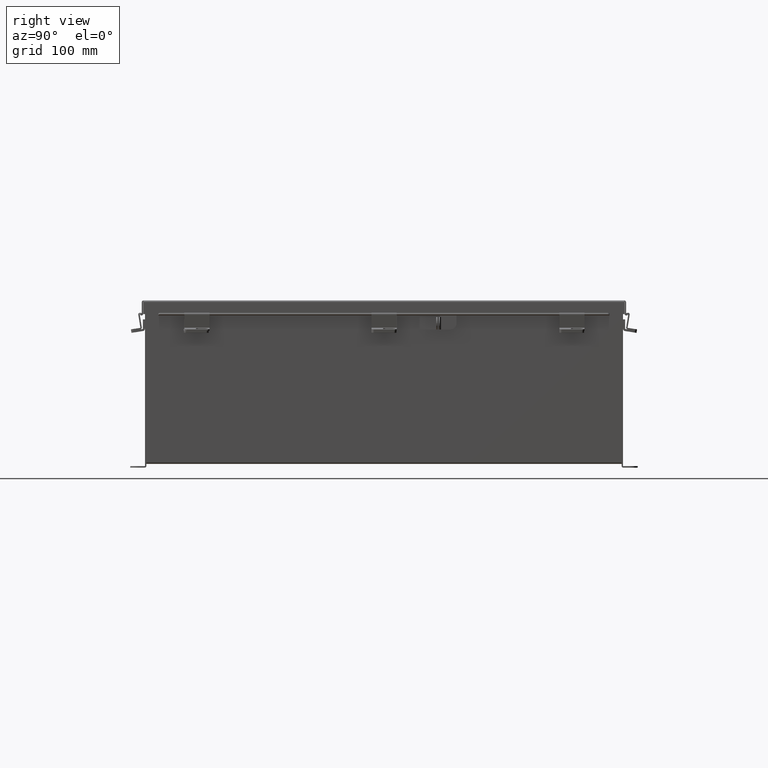
[diagram: clean part render]
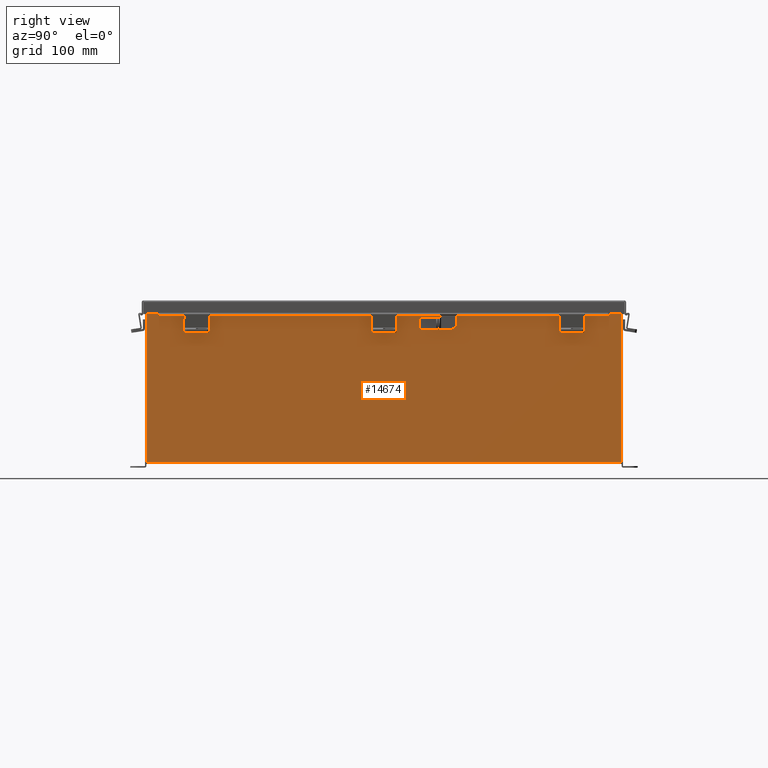
[diagram: same view with one face highlighted and labeled with its STEP entity id]
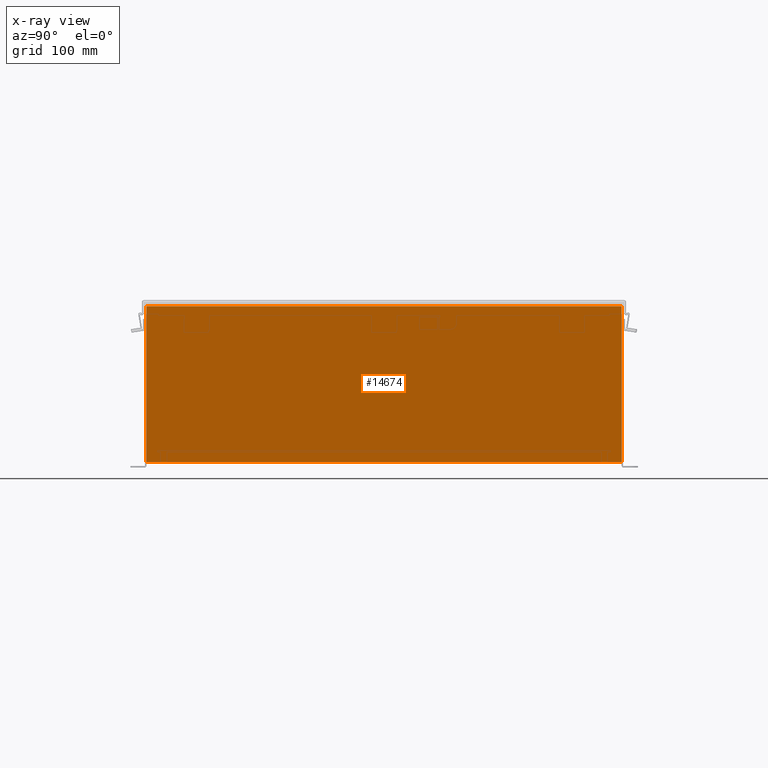
[diagram: x-ray of the same camera — body ghosted, the highlighted face saturated]
A machine part, right view. The second image highlights one B-rep face of the part: STEP entity #14674.
The next image is the same camera in x-ray: the body ghosted, the highlighted face saturated — about 0% of this face is hidden behind the body in this view.
In plain terms, the highlighted planar face has unit normal (-1, 0, 0).
Its self-contained STEP definition (entity closure, byte-faithful):
#30 = ORIENTED_EDGE ( 'NONE', *, *, #12408, .T. ) ;
#211 = ORIENTED_EDGE ( 'NONE', *, *, #10197, .T. ) ;
#981 = DIRECTION ( 'NONE',  ( -0.0000000000000000000, -1.000000000000000000, -0.0000000000000000000 ) ) ;
#3743 = VERTEX_POINT ( 'NONE', #20779 ) ;
#3793 = EDGE_LOOP ( 'NONE', ( #211, #30, #24197, #11752 ) ) ;
#5297 = PLANE ( 'NONE',  #8667 ) ;
#5369 = LINE ( 'NONE', #13955, #15008 ) ;
#6291 = DIRECTION ( 'NONE',  ( -0.0000000000000000000, -1.000000000000000000, -0.0000000000000000000 ) ) ;
#6735 = VECTOR ( 'NONE', #10698, 39.37007874015748100 ) ;
#8667 = AXIS2_PLACEMENT_3D ( 'NONE', #22651, #11143, #24557 ) ;
#8904 = VECTOR ( 'NONE', #22670, 39.37007874015748100 ) ;
#9095 = EDGE_CURVE ( 'NONE', #3743, #22170, #22873, .T. ) ;
#10197 = EDGE_CURVE ( 'NONE', #20663, #17118, #5369, .T. ) ;
#10698 = DIRECTION ( 'NONE',  ( 3.618986973493534200E-015, -2.783836133456565100E-016, 1.000000000000000000 ) ) ;
#11143 = DIRECTION ( 'NONE',  ( -1.000000000000000000, 0.0000000000000000000, 3.618986973493534200E-015 ) ) ;
#11278 = LINE ( 'NONE', #22294, #6735 ) ;
#11752 = ORIENTED_EDGE ( 'NONE', *, *, #19280, .T. ) ;
#12408 = EDGE_CURVE ( 'NONE', #17118, #22170, #24232, .T. ) ;
#13063 = CARTESIAN_POINT ( 'NONE',  ( 12.00000000000002700, 11.92529999999999800, 7.837600000000000100 ) ) ;
#13231 = VECTOR ( 'NONE', #981, 39.37007874015748100 ) ;
#13955 = CARTESIAN_POINT ( 'NONE',  ( 12.00000000000002700, 11.92530000000000000, 7.837600000000000100 ) ) ;
#14450 = CARTESIAN_POINT ( 'NONE',  ( 12.00000000000000200, -11.92530000000000000, 0.01299999999999982600 ) ) ;
#14674 = ADVANCED_FACE ( 'NONE', ( #18376 ), #5297, .F. ) ;
#15008 = VECTOR ( 'NONE', #6291, 39.37007874015748100 ) ;
#16829 = CARTESIAN_POINT ( 'NONE',  ( 12.00000000000000200, -11.92530000000000000, -4.369249384866780800E-014 ) ) ;
#17118 = VERTEX_POINT ( 'NONE', #20540 ) ;
#18376 = FACE_OUTER_BOUND ( 'NONE', #3793, .T. ) ;
#19280 = EDGE_CURVE ( 'NONE', #3743, #20663, #11278, .T. ) ;
#20540 = CARTESIAN_POINT ( 'NONE',  ( 12.00000000000003000, -11.92530000000000000, 7.837600000000000100 ) ) ;
#20663 = VERTEX_POINT ( 'NONE', #13063 ) ;
#20779 = CARTESIAN_POINT ( 'NONE',  ( 12.00000000000000200, 11.92529999999999800, 0.01299999999999982600 ) ) ;
#22170 = VERTEX_POINT ( 'NONE', #24617 ) ;
#22294 = CARTESIAN_POINT ( 'NONE',  ( 12.00000000000000200, 11.92530000000000000, -4.037159113136968800E-014 ) ) ;
#22651 = CARTESIAN_POINT ( 'NONE',  ( 12.00000000000000200, 0.0000000000000000000, -4.369249384866780800E-014 ) ) ;
#22670 = DIRECTION ( 'NONE',  ( -3.618986973493534200E-015, 0.0000000000000000000, -1.000000000000000000 ) ) ;
#22873 = LINE ( 'NONE', #14450, #13231 ) ;
#24197 = ORIENTED_EDGE ( 'NONE', *, *, #9095, .F. ) ;
#24232 = LINE ( 'NONE', #16829, #8904 ) ;
#24557 = DIRECTION ( 'NONE',  ( 3.618986973493534200E-015, 0.0000000000000000000, 1.000000000000000000 ) ) ;
#24617 = CARTESIAN_POINT ( 'NONE',  ( 12.00000000000000200, -11.92530000000000000, 0.01299999999999984300 ) ) ;